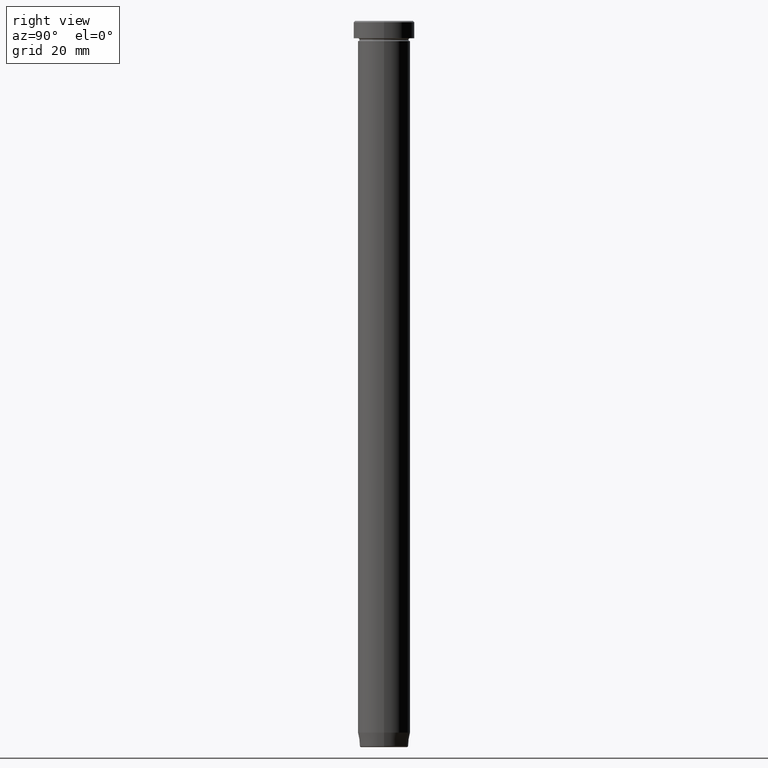
[diagram: clean part render]
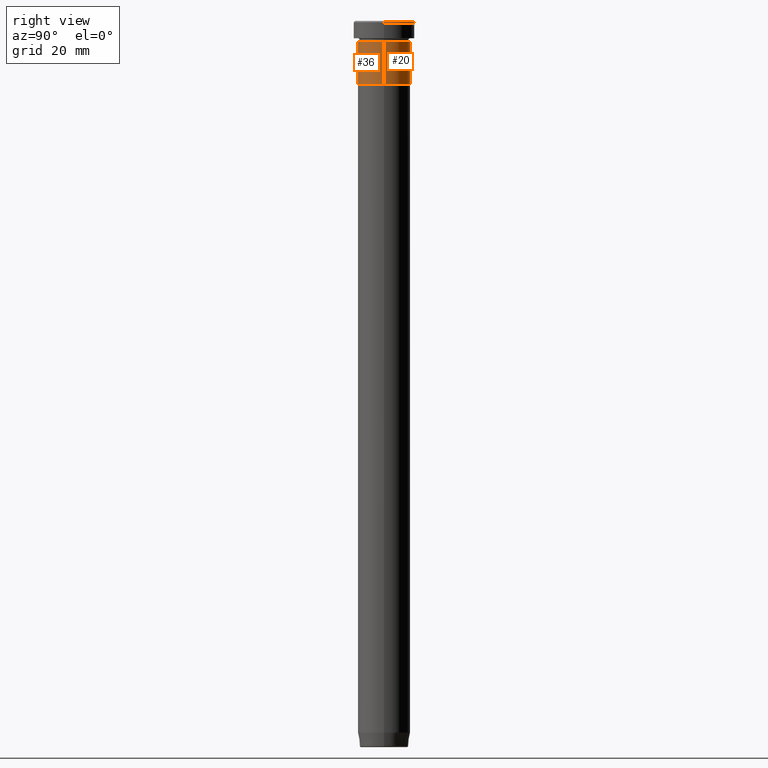
[diagram: same view with one multi-face feature highlighted, each face labeled with its STEP entity id]
A machine part, right view. The highlighted faces form ONE feature: a constant-radius fillet chain: 2 tangent blend faces with common blend radius 9 mm. The faces share edges in the B-rep.
Their STEP definitions:
[1] entity #36 (Cylinder):
#3 = CARTESIAN_POINT ( 'NONE',  ( 9.000000000000000000, 0.000000000000000000, -22.00000000000000000 ) ) ;
#24 = DIRECTION ( 'NONE',  ( -0.000000000000000000, -0.000000000000000000, 1.000000000000000000 ) ) ;
#36 = ADVANCED_FACE ( 'NONE', ( #592 ), #440, .T. ) ;
#42 = EDGE_CURVE ( 'NONE', #133, #448, #402, .T. ) ;
#45 = CARTESIAN_POINT ( 'NONE',  ( -9.000000000000000000, 1.102182119232617714E-15, -22.00000000000000000 ) ) ;
#69 = ORIENTED_EDGE ( 'NONE', *, *, #42, .F. ) ;
#86 = CARTESIAN_POINT ( 'NONE',  ( -9.000000000000000000, 1.102182119232617714E-15, 0.000000000000000000 ) ) ;
#117 = LINE ( 'NONE', #579, #238 ) ;
#133 = VERTEX_POINT ( 'NONE', #45 ) ;
#151 = ORIENTED_EDGE ( 'NONE', *, *, #244, .T. ) ;
#157 = ORIENTED_EDGE ( 'NONE', *, *, #383, .F. ) ;
#169 = EDGE_CURVE ( 'NONE', #133, #537, #288, .T. ) ;
#172 = CIRCLE ( 'NONE', #577, 9.000000000000000000 ) ;
#191 = AXIS2_PLACEMENT_3D ( 'NONE', #510, #517, #276 ) ;
#213 = DIRECTION ( 'NONE',  ( -0.000000000000000000, -0.000000000000000000, 1.000000000000000000 ) ) ;
#221 = VERTEX_POINT ( 'NONE', #225 ) ;
#225 = CARTESIAN_POINT ( 'NONE',  ( 9.000000000000000000, 0.000000000000000000, -7.000000000000000000 ) ) ;
#234 = EDGE_LOOP ( 'NONE', ( #69, #456, #151, #157 ) ) ;
#238 = VECTOR ( 'NONE', #24, 1000.000000000000000 ) ;
#244 = EDGE_CURVE ( 'NONE', #537, #221, #117, .T. ) ;
#276 = DIRECTION ( 'NONE',  ( 1.000000000000000000, 0.000000000000000000, 0.000000000000000000 ) ) ;
#288 = CIRCLE ( 'NONE', #191, 9.000000000000000000 ) ;
#301 = CARTESIAN_POINT ( 'NONE',  ( 0.000000000000000000, 0.000000000000000000, 0.000000000000000000 ) ) ;
#314 = CARTESIAN_POINT ( 'NONE',  ( 0.000000000000000000, 0.000000000000000000, -7.000000000000000000 ) ) ;
#376 = AXIS2_PLACEMENT_3D ( 'NONE', #301, #540, #438 ) ;
#383 = EDGE_CURVE ( 'NONE', #448, #221, #172, .T. ) ;
#402 = LINE ( 'NONE', #86, #404 ) ;
#404 = VECTOR ( 'NONE', #436, 1000.000000000000000 ) ;
#436 = DIRECTION ( 'NONE',  ( -0.000000000000000000, -0.000000000000000000, 1.000000000000000000 ) ) ;
#438 = DIRECTION ( 'NONE',  ( 1.000000000000000000, 0.000000000000000000, 0.000000000000000000 ) ) ;
#440 = CYLINDRICAL_SURFACE ( 'NONE', #376, 9.000000000000000000 ) ;
#444 = CARTESIAN_POINT ( 'NONE',  ( -9.000000000000000000, 1.102182119232617714E-15, -7.000000000000000000 ) ) ;
#448 = VERTEX_POINT ( 'NONE', #444 ) ;
#456 = ORIENTED_EDGE ( 'NONE', *, *, #169, .T. ) ;
#510 = CARTESIAN_POINT ( 'NONE',  ( 0.000000000000000000, 0.000000000000000000, -22.00000000000000000 ) ) ;
#517 = DIRECTION ( 'NONE',  ( -0.000000000000000000, -0.000000000000000000, 1.000000000000000000 ) ) ;
#537 = VERTEX_POINT ( 'NONE', #3 ) ;
#540 = DIRECTION ( 'NONE',  ( -0.000000000000000000, -0.000000000000000000, 1.000000000000000000 ) ) ;
#577 = AXIS2_PLACEMENT_3D ( 'NONE', #314, #213, #587 ) ;
#579 = CARTESIAN_POINT ( 'NONE',  ( 9.000000000000000000, 0.000000000000000000, 0.000000000000000000 ) ) ;
#587 = DIRECTION ( 'NONE',  ( 1.000000000000000000, 0.000000000000000000, 0.000000000000000000 ) ) ;
#592 = FACE_OUTER_BOUND ( 'NONE', #234, .T. ) ;
[2] entity #20 (Cylinder):
#3 = CARTESIAN_POINT ( 'NONE',  ( 9.000000000000000000, 0.000000000000000000, -22.00000000000000000 ) ) ;
#8 = CARTESIAN_POINT ( 'NONE',  ( 0.000000000000000000, 0.000000000000000000, -22.00000000000000000 ) ) ;
#19 = EDGE_LOOP ( 'NONE', ( #460, #570, #553, #420 ) ) ;
#20 = ADVANCED_FACE ( 'NONE', ( #352 ), #84, .T. ) ;
#24 = DIRECTION ( 'NONE',  ( -0.000000000000000000, -0.000000000000000000, 1.000000000000000000 ) ) ;
#34 = AXIS2_PLACEMENT_3D ( 'NONE', #386, #67, #159 ) ;
#42 = EDGE_CURVE ( 'NONE', #133, #448, #402, .T. ) ;
#45 = CARTESIAN_POINT ( 'NONE',  ( -9.000000000000000000, 1.102182119232617714E-15, -22.00000000000000000 ) ) ;
#67 = DIRECTION ( 'NONE',  ( -0.000000000000000000, -0.000000000000000000, 1.000000000000000000 ) ) ;
#84 = CYLINDRICAL_SURFACE ( 'NONE', #146, 9.000000000000000000 ) ;
#86 = CARTESIAN_POINT ( 'NONE',  ( -9.000000000000000000, 1.102182119232617714E-15, 0.000000000000000000 ) ) ;
#117 = LINE ( 'NONE', #579, #238 ) ;
#133 = VERTEX_POINT ( 'NONE', #45 ) ;
#146 = AXIS2_PLACEMENT_3D ( 'NONE', #397, #595, #174 ) ;
#159 = DIRECTION ( 'NONE',  ( 1.000000000000000000, 0.000000000000000000, 0.000000000000000000 ) ) ;
#174 = DIRECTION ( 'NONE',  ( 1.000000000000000000, 0.000000000000000000, 0.000000000000000000 ) ) ;
#221 = VERTEX_POINT ( 'NONE', #225 ) ;
#225 = CARTESIAN_POINT ( 'NONE',  ( 9.000000000000000000, 0.000000000000000000, -7.000000000000000000 ) ) ;
#226 = AXIS2_PLACEMENT_3D ( 'NONE', #8, #558, #368 ) ;
#238 = VECTOR ( 'NONE', #24, 1000.000000000000000 ) ;
#244 = EDGE_CURVE ( 'NONE', #537, #221, #117, .T. ) ;
#297 = EDGE_CURVE ( 'NONE', #221, #448, #328, .T. ) ;
#319 = CIRCLE ( 'NONE', #226, 9.000000000000000000 ) ;
#328 = CIRCLE ( 'NONE', #34, 9.000000000000000000 ) ;
#352 = FACE_OUTER_BOUND ( 'NONE', #19, .T. ) ;
#368 = DIRECTION ( 'NONE',  ( 1.000000000000000000, 0.000000000000000000, 0.000000000000000000 ) ) ;
#386 = CARTESIAN_POINT ( 'NONE',  ( 0.000000000000000000, 0.000000000000000000, -7.000000000000000000 ) ) ;
#397 = CARTESIAN_POINT ( 'NONE',  ( 0.000000000000000000, 0.000000000000000000, 0.000000000000000000 ) ) ;
#402 = LINE ( 'NONE', #86, #404 ) ;
#404 = VECTOR ( 'NONE', #436, 1000.000000000000000 ) ;
#420 = ORIENTED_EDGE ( 'NONE', *, *, #244, .F. ) ;
#436 = DIRECTION ( 'NONE',  ( -0.000000000000000000, -0.000000000000000000, 1.000000000000000000 ) ) ;
#444 = CARTESIAN_POINT ( 'NONE',  ( -9.000000000000000000, 1.102182119232617714E-15, -7.000000000000000000 ) ) ;
#448 = VERTEX_POINT ( 'NONE', #444 ) ;
#460 = ORIENTED_EDGE ( 'NONE', *, *, #473, .T. ) ;
#473 = EDGE_CURVE ( 'NONE', #537, #133, #319, .T. ) ;
#537 = VERTEX_POINT ( 'NONE', #3 ) ;
#553 = ORIENTED_EDGE ( 'NONE', *, *, #297, .F. ) ;
#558 = DIRECTION ( 'NONE',  ( -0.000000000000000000, -0.000000000000000000, 1.000000000000000000 ) ) ;
#570 = ORIENTED_EDGE ( 'NONE', *, *, #42, .T. ) ;
#579 = CARTESIAN_POINT ( 'NONE',  ( 9.000000000000000000, 0.000000000000000000, 0.000000000000000000 ) ) ;
#595 = DIRECTION ( 'NONE',  ( -0.000000000000000000, -0.000000000000000000, 1.000000000000000000 ) ) ;